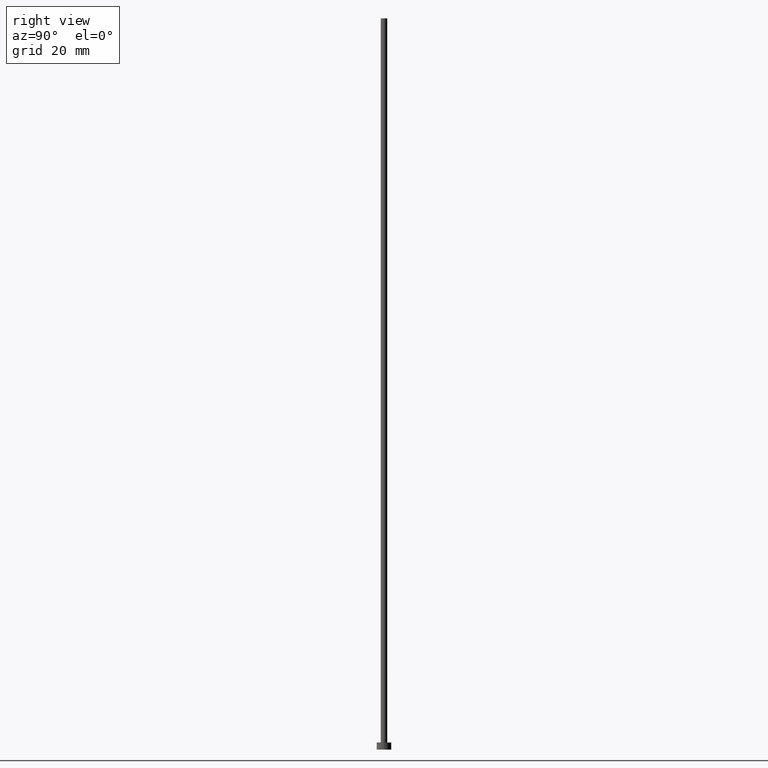
[diagram: clean part render]
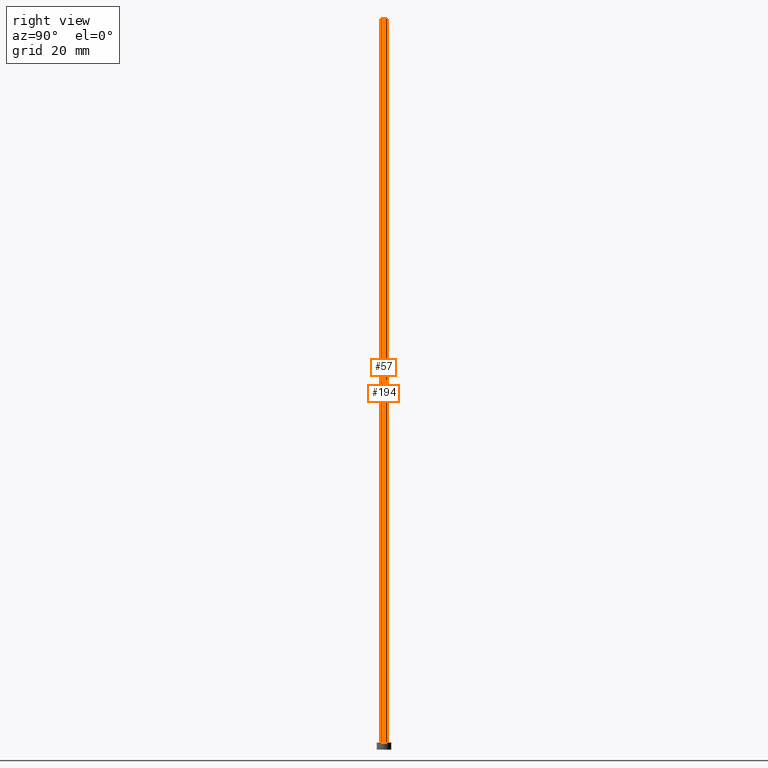
[diagram: same view with one multi-face feature highlighted, each face labeled with its STEP entity id]
A machine part, right view. The highlighted faces form ONE feature: a constant-radius fillet chain: 2 tangent blend faces with common blend radius 0.55 mm. The faces share edges in the B-rep.
Their STEP definitions:
[1] entity #194 (Cylinder):
#4 = CARTESIAN_POINT ( 'NONE',  ( 0.000000000000000000, 0.000000000000000000, 1.199999999999999956 ) ) ;
#14 = EDGE_CURVE ( 'NONE', #196, #90, #37, .T. ) ;
#23 = ORIENTED_EDGE ( 'NONE', *, *, #156, .F. ) ;
#24 = DIRECTION ( 'NONE',  ( 1.000000000000000000, 0.000000000000000000, 0.000000000000000000 ) ) ;
#28 = CARTESIAN_POINT ( 'NONE',  ( 0.5500000000000000444, 6.735557395310442516E-17, 125.0000000000000000 ) ) ;
#32 = CYLINDRICAL_SURFACE ( 'NONE', #199, 0.5500000000000000444 ) ;
#37 = CIRCLE ( 'NONE', #190, 0.5500000000000000444 ) ;
#43 = CARTESIAN_POINT ( 'NONE',  ( -0.5500000000000000444, 0.000000000000000000, 1.199999999999999956 ) ) ;
#47 = DIRECTION ( 'NONE',  ( -1.000000000000000000, 0.000000000000000000, 0.000000000000000000 ) ) ;
#63 = VECTOR ( 'NONE', #183, 1000.000000000000000 ) ;
#65 = CARTESIAN_POINT ( 'NONE',  ( 0.5500000000000000444, 6.735557395310442516E-17, 1.199999999999999956 ) ) ;
#66 = CARTESIAN_POINT ( 'NONE',  ( 0.000000000000000000, 0.000000000000000000, 125.0000000000000000 ) ) ;
#73 = VERTEX_POINT ( 'NONE', #28 ) ;
#86 = VECTOR ( 'NONE', #193, 1000.000000000000000 ) ;
#87 = DIRECTION ( 'NONE',  ( -0.000000000000000000, -0.000000000000000000, -1.000000000000000000 ) ) ;
#90 = VERTEX_POINT ( 'NONE', #43 ) ;
#93 = DIRECTION ( 'NONE',  ( 1.000000000000000000, 0.000000000000000000, 0.000000000000000000 ) ) ;
#100 = CARTESIAN_POINT ( 'NONE',  ( 0.5500000000000000444, 6.735557395310442516E-17, 125.0000000000000000 ) ) ;
#104 = EDGE_CURVE ( 'NONE', #73, #217, #245, .T. ) ;
#106 = CARTESIAN_POINT ( 'NONE',  ( -0.5500000000000000444, 0.000000000000000000, 125.0000000000000000 ) ) ;
#118 = DIRECTION ( 'NONE',  ( 0.000000000000000000, 0.000000000000000000, 1.000000000000000000 ) ) ;
#132 = LINE ( 'NONE', #106, #86 ) ;
#135 = DIRECTION ( 'NONE',  ( 0.000000000000000000, 0.000000000000000000, 1.000000000000000000 ) ) ;
#137 = EDGE_CURVE ( 'NONE', #73, #196, #203, .T. ) ;
#147 = AXIS2_PLACEMENT_3D ( 'NONE', #253, #118, #24 ) ;
#148 = FACE_OUTER_BOUND ( 'NONE', #221, .T. ) ;
#155 = ORIENTED_EDGE ( 'NONE', *, *, #104, .F. ) ;
#156 = EDGE_CURVE ( 'NONE', #217, #90, #132, .T. ) ;
#171 = CARTESIAN_POINT ( 'NONE',  ( -0.5500000000000000444, 0.000000000000000000, 125.0000000000000000 ) ) ;
#183 = DIRECTION ( 'NONE',  ( -0.000000000000000000, -0.000000000000000000, -1.000000000000000000 ) ) ;
#190 = AXIS2_PLACEMENT_3D ( 'NONE', #4, #135, #93 ) ;
#193 = DIRECTION ( 'NONE',  ( -0.000000000000000000, -0.000000000000000000, -1.000000000000000000 ) ) ;
#194 = ADVANCED_FACE ( 'NONE', ( #148 ), #32, .T. ) ;
#196 = VERTEX_POINT ( 'NONE', #65 ) ;
#199 = AXIS2_PLACEMENT_3D ( 'NONE', #66, #87, #47 ) ;
#203 = LINE ( 'NONE', #100, #63 ) ;
#211 = ORIENTED_EDGE ( 'NONE', *, *, #14, .T. ) ;
#217 = VERTEX_POINT ( 'NONE', #171 ) ;
#221 = EDGE_LOOP ( 'NONE', ( #155, #244, #211, #23 ) ) ;
#244 = ORIENTED_EDGE ( 'NONE', *, *, #137, .T. ) ;
#245 = CIRCLE ( 'NONE', #147, 0.5500000000000000444 ) ;
#253 = CARTESIAN_POINT ( 'NONE',  ( 0.000000000000000000, 0.000000000000000000, 125.0000000000000000 ) ) ;
[2] entity #57 (Cylinder):
#17 = AXIS2_PLACEMENT_3D ( 'NONE', #62, #146, #131 ) ;
#22 = ORIENTED_EDGE ( 'NONE', *, *, #156, .T. ) ;
#28 = CARTESIAN_POINT ( 'NONE',  ( 0.5500000000000000444, 6.735557395310442516E-17, 125.0000000000000000 ) ) ;
#38 = AXIS2_PLACEMENT_3D ( 'NONE', #84, #235, #233 ) ;
#43 = CARTESIAN_POINT ( 'NONE',  ( -0.5500000000000000444, 0.000000000000000000, 1.199999999999999956 ) ) ;
#53 = ORIENTED_EDGE ( 'NONE', *, *, #137, .F. ) ;
#57 = ADVANCED_FACE ( 'NONE', ( #59 ), #75, .T. ) ;
#58 = CIRCLE ( 'NONE', #38, 0.5500000000000000444 ) ;
#59 = FACE_OUTER_BOUND ( 'NONE', #168, .T. ) ;
#62 = CARTESIAN_POINT ( 'NONE',  ( 0.000000000000000000, 0.000000000000000000, 1.199999999999999956 ) ) ;
#63 = VECTOR ( 'NONE', #183, 1000.000000000000000 ) ;
#65 = CARTESIAN_POINT ( 'NONE',  ( 0.5500000000000000444, 6.735557395310442516E-17, 1.199999999999999956 ) ) ;
#73 = VERTEX_POINT ( 'NONE', #28 ) ;
#75 = CYLINDRICAL_SURFACE ( 'NONE', #218, 0.5500000000000000444 ) ;
#84 = CARTESIAN_POINT ( 'NONE',  ( 0.000000000000000000, 0.000000000000000000, 125.0000000000000000 ) ) ;
#86 = VECTOR ( 'NONE', #193, 1000.000000000000000 ) ;
#90 = VERTEX_POINT ( 'NONE', #43 ) ;
#100 = CARTESIAN_POINT ( 'NONE',  ( 0.5500000000000000444, 6.735557395310442516E-17, 125.0000000000000000 ) ) ;
#106 = CARTESIAN_POINT ( 'NONE',  ( -0.5500000000000000444, 0.000000000000000000, 125.0000000000000000 ) ) ;
#130 = CIRCLE ( 'NONE', #17, 0.5500000000000000444 ) ;
#131 = DIRECTION ( 'NONE',  ( 1.000000000000000000, 0.000000000000000000, 0.000000000000000000 ) ) ;
#132 = LINE ( 'NONE', #106, #86 ) ;
#137 = EDGE_CURVE ( 'NONE', #73, #196, #203, .T. ) ;
#144 = DIRECTION ( 'NONE',  ( -1.000000000000000000, 0.000000000000000000, 0.000000000000000000 ) ) ;
#146 = DIRECTION ( 'NONE',  ( 0.000000000000000000, 0.000000000000000000, 1.000000000000000000 ) ) ;
#156 = EDGE_CURVE ( 'NONE', #217, #90, #132, .T. ) ;
#168 = EDGE_LOOP ( 'NONE', ( #53, #176, #22, #198 ) ) ;
#171 = CARTESIAN_POINT ( 'NONE',  ( -0.5500000000000000444, 0.000000000000000000, 125.0000000000000000 ) ) ;
#176 = ORIENTED_EDGE ( 'NONE', *, *, #212, .F. ) ;
#183 = DIRECTION ( 'NONE',  ( -0.000000000000000000, -0.000000000000000000, -1.000000000000000000 ) ) ;
#193 = DIRECTION ( 'NONE',  ( -0.000000000000000000, -0.000000000000000000, -1.000000000000000000 ) ) ;
#196 = VERTEX_POINT ( 'NONE', #65 ) ;
#198 = ORIENTED_EDGE ( 'NONE', *, *, #237, .T. ) ;
#203 = LINE ( 'NONE', #100, #63 ) ;
#204 = DIRECTION ( 'NONE',  ( -0.000000000000000000, -0.000000000000000000, -1.000000000000000000 ) ) ;
#212 = EDGE_CURVE ( 'NONE', #217, #73, #58, .T. ) ;
#217 = VERTEX_POINT ( 'NONE', #171 ) ;
#218 = AXIS2_PLACEMENT_3D ( 'NONE', #223, #204, #144 ) ;
#223 = CARTESIAN_POINT ( 'NONE',  ( 0.000000000000000000, 0.000000000000000000, 125.0000000000000000 ) ) ;
#233 = DIRECTION ( 'NONE',  ( 1.000000000000000000, 0.000000000000000000, 0.000000000000000000 ) ) ;
#235 = DIRECTION ( 'NONE',  ( 0.000000000000000000, 0.000000000000000000, 1.000000000000000000 ) ) ;
#237 = EDGE_CURVE ( 'NONE', #90, #196, #130, .T. ) ;